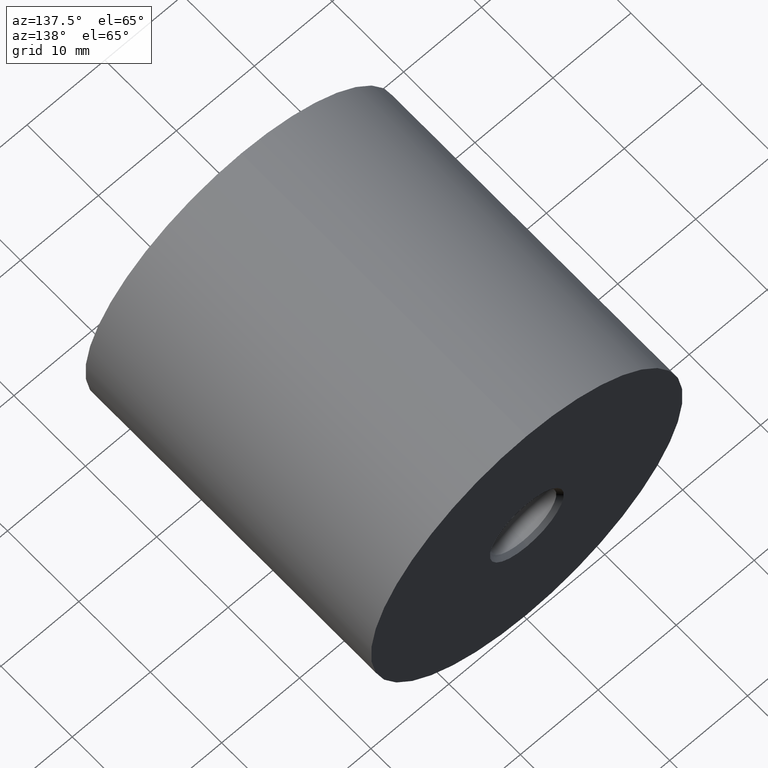
[diagram: clean part render]
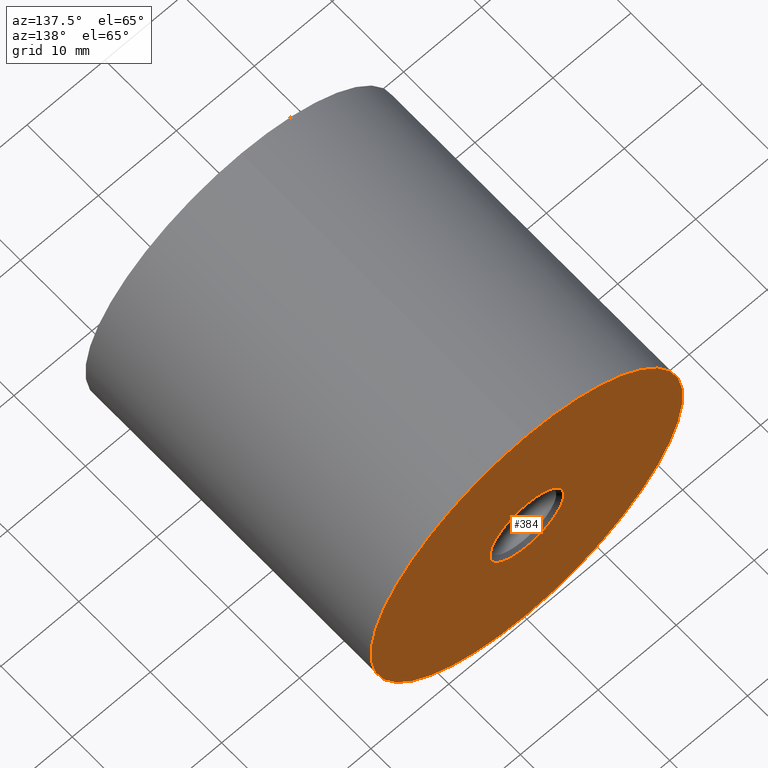
[diagram: same view with one face highlighted and labeled with its STEP entity id]
A machine part, auxiliary view. The second image highlights one B-rep face of the part: STEP entity #384.
In plain terms, the highlighted planar face has unit normal (-0, 1, 0).
Its self-contained STEP definition (entity closure, byte-faithful):
#29 = CARTESIAN_POINT ( 'NONE',  ( -20.00000000000001421, 40.00000000000000000, 0.000000000000000000 ) ) ;
#67 = CARTESIAN_POINT ( 'NONE',  ( 0.000000000000000000, 40.00000000000000000, 0.000000000000000000 ) ) ;
#171 = DIRECTION ( 'NONE',  ( 0.000000000000000000, 0.000000000000000000, 1.000000000000000000 ) ) ;
#216 = AXIS2_PLACEMENT_3D ( 'NONE', #29, #9460, #9627 ) ;
#384 = ADVANCED_FACE ( 'NONE', ( #8464, #2881 ), #9575, .T. ) ;
#403 = CARTESIAN_POINT ( 'NONE',  ( 2.449293598294708485E-15, 40.00000000000000000, -20.00000000000001776 ) ) ;
#964 = CARTESIAN_POINT ( 'NONE',  ( 0.000000000000000000, 40.00000000000000000, 4.750000000000006217 ) ) ;
#1673 = EDGE_CURVE ( 'NONE', #12537, #9663, #6018, .T. ) ;
#1932 = ORIENTED_EDGE ( 'NONE', *, *, #12957, .T. ) ;
#2124 = CARTESIAN_POINT ( 'NONE',  ( 0.000000000000000000, 40.00000000000000000, 0.000000000000000000 ) ) ;
#2607 = AXIS2_PLACEMENT_3D ( 'NONE', #67, #7121, #5927 ) ;
#2881 = FACE_BOUND ( 'NONE', #10420, .T. ) ;
#3255 = VERTEX_POINT ( 'NONE', #9681 ) ;
#3647 = EDGE_CURVE ( 'NONE', #3255, #13473, #7300, .T. ) ;
#3977 = EDGE_CURVE ( 'NONE', #13473, #3255, #9502, .T. ) ;
#4324 = DIRECTION ( 'NONE',  ( -0.000000000000000000, 1.000000000000000000, -0.000000000000000000 ) ) ;
#5192 = CARTESIAN_POINT ( 'NONE',  ( 0.000000000000000000, 40.00000000000000000, 20.00000000000001421 ) ) ;
#5927 = DIRECTION ( 'NONE',  ( 0.000000000000000000, 0.000000000000000000, 1.000000000000000000 ) ) ;
#6018 = CIRCLE ( 'NONE', #10250, 20.00000000000001421 ) ;
#6199 = DIRECTION ( 'NONE',  ( -0.000000000000000000, 1.000000000000000000, -0.000000000000000000 ) ) ;
#7121 = DIRECTION ( 'NONE',  ( -0.000000000000000000, 1.000000000000000000, -0.000000000000000000 ) ) ;
#7300 = CIRCLE ( 'NONE', #11737, 4.750000000000006217 ) ;
#8464 = FACE_OUTER_BOUND ( 'NONE', #12281, .T. ) ;
#9159 = CARTESIAN_POINT ( 'NONE',  ( 0.000000000000000000, 40.00000000000000000, 0.000000000000000000 ) ) ;
#9210 = DIRECTION ( 'NONE',  ( 0.000000000000000000, 0.000000000000000000, 1.000000000000000000 ) ) ;
#9331 = DIRECTION ( 'NONE',  ( 0.000000000000000000, 0.000000000000000000, 1.000000000000000000 ) ) ;
#9460 = DIRECTION ( 'NONE',  ( -0.000000000000000000, 1.000000000000000000, 0.000000000000000000 ) ) ;
#9502 = CIRCLE ( 'NONE', #14441, 4.750000000000006217 ) ;
#9575 = PLANE ( 'NONE',  #216 ) ;
#9627 = DIRECTION ( 'NONE',  ( 0.000000000000000000, 0.000000000000000000, 1.000000000000000000 ) ) ;
#9663 = VERTEX_POINT ( 'NONE', #403 ) ;
#9681 = CARTESIAN_POINT ( 'NONE',  ( 5.817072295949935315E-16, 40.00000000000000000, -4.750000000000006217 ) ) ;
#9715 = CARTESIAN_POINT ( 'NONE',  ( 0.000000000000000000, 40.00000000000000000, 0.000000000000000000 ) ) ;
#10250 = AXIS2_PLACEMENT_3D ( 'NONE', #9159, #4324, #9210 ) ;
#10420 = EDGE_LOOP ( 'NONE', ( #12538, #13477 ) ) ;
#11582 = DIRECTION ( 'NONE',  ( -0.000000000000000000, 1.000000000000000000, -0.000000000000000000 ) ) ;
#11619 = ORIENTED_EDGE ( 'NONE', *, *, #1673, .T. ) ;
#11737 = AXIS2_PLACEMENT_3D ( 'NONE', #9715, #6199, #171 ) ;
#12281 = EDGE_LOOP ( 'NONE', ( #11619, #1932 ) ) ;
#12537 = VERTEX_POINT ( 'NONE', #5192 ) ;
#12538 = ORIENTED_EDGE ( 'NONE', *, *, #3977, .F. ) ;
#12957 = EDGE_CURVE ( 'NONE', #9663, #12537, #15143, .T. ) ;
#13473 = VERTEX_POINT ( 'NONE', #964 ) ;
#13477 = ORIENTED_EDGE ( 'NONE', *, *, #3647, .F. ) ;
#14441 = AXIS2_PLACEMENT_3D ( 'NONE', #2124, #11582, #9331 ) ;
#15143 = CIRCLE ( 'NONE', #2607, 20.00000000000001421 ) ;